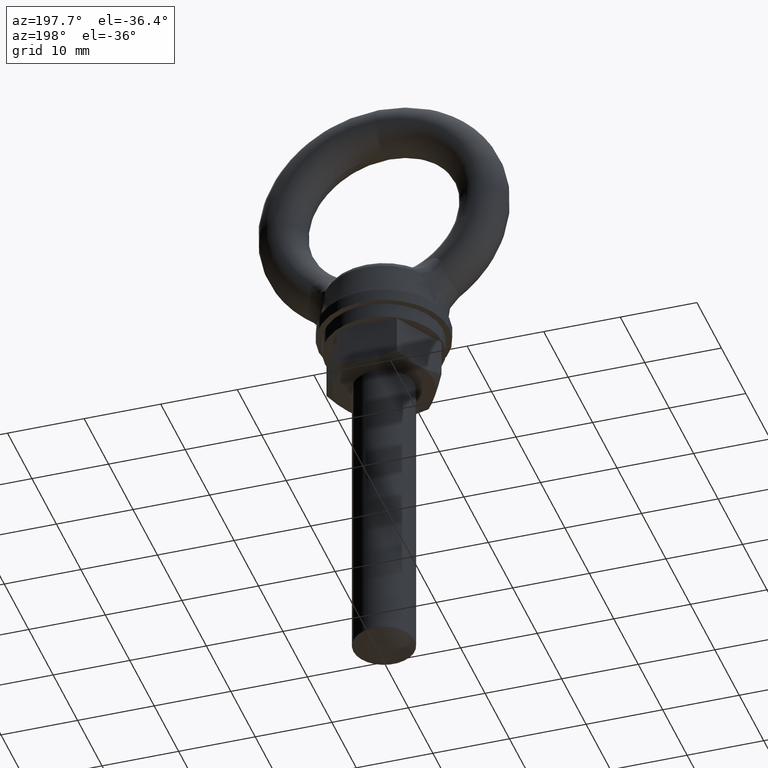
[diagram: clean part render]
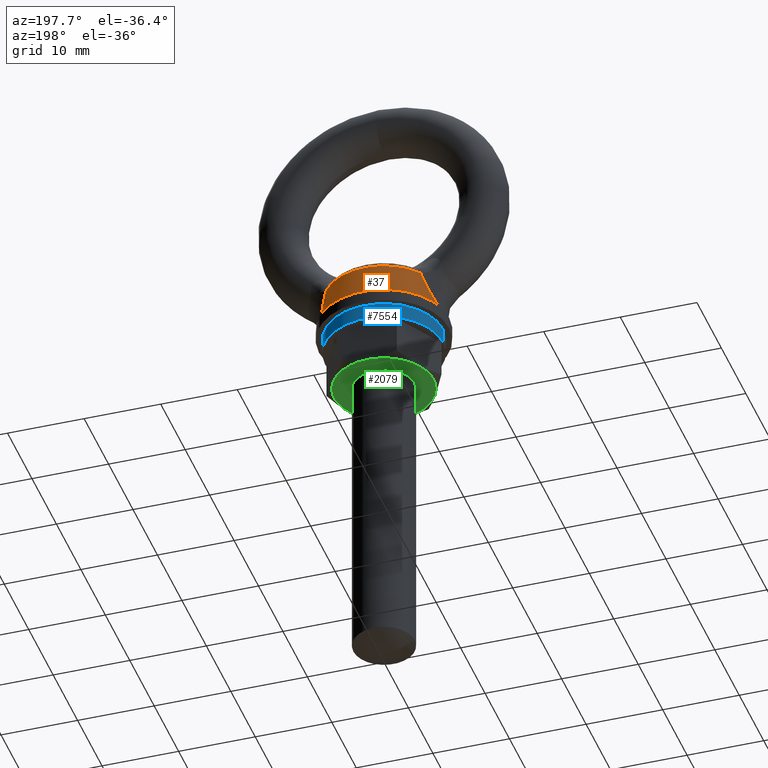
[diagram: same view with three faces highlighted in distinct colors, each labeled with its STEP entity id]
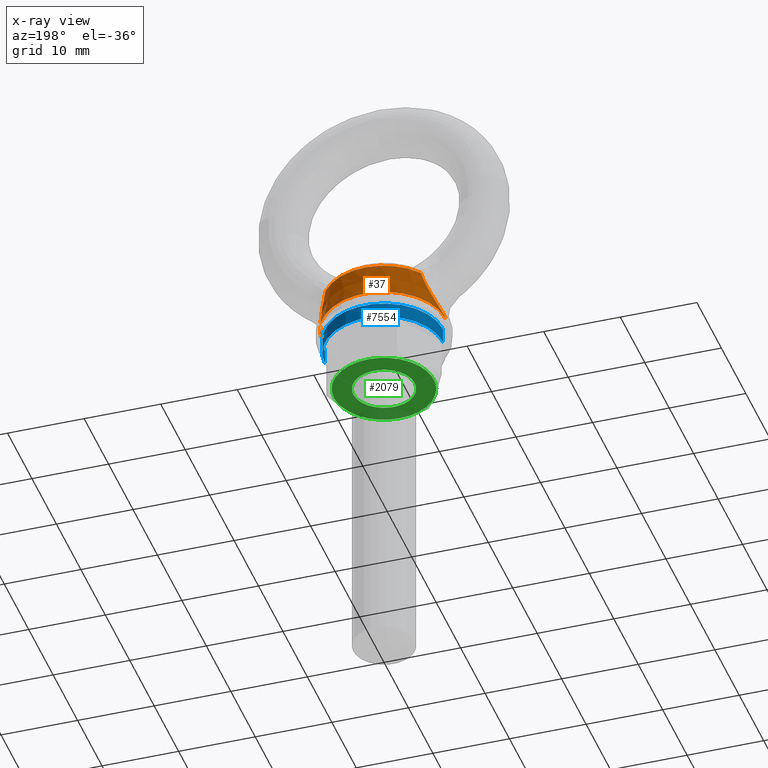
[diagram: x-ray of the same camera — body ghosted, the three highlighted faces saturated]
A machine part, auxiliary view with three faces highlighted in distinct colors.
The next image is the same camera in x-ray (body ghosted, the three faces saturated) — at least one of them is partly hidden behind the body in this view.
Their STEP definitions:

[orange] entity #37 — the highlighted conical surface has half-angle 5 deg.
#10 = ORIENTED_EDGE ( 'NONE', *, *, #11, .T. ) ;
#11 = EDGE_CURVE ( 'NONE', #108, #109, #508, .T. ) ;
#36 = EDGE_LOOP ( 'NONE', ( #10, #43, #1816, #1819, #1822, #2021 ) ) ;
#37 = ADVANCED_FACE ( 'NONE', ( #1363 ), #1356, .T. ) ;
#43 = ORIENTED_EDGE ( 'NONE', *, *, #1815, .T. ) ;
#97 = VERTEX_POINT ( 'NONE', #6023 ) ;
#108 = VERTEX_POINT ( 'NONE', #5572 ) ;
#109 = VERTEX_POINT ( 'NONE', #5528 ) ;
#413 = CARTESIAN_POINT ( 'NONE',  ( 7.978061295766676300, 2.547687685380514800E-011, -16.74923997788642900 ) ) ;
#414 = CARTESIAN_POINT ( 'NONE',  ( 7.978061295765623800, 0.2833191255498193100, -16.74923997788471700 ) ) ;
#415 = CARTESIAN_POINT ( 'NONE',  ( 7.959795342409210900, 0.5718046275041904800, -16.71977356463808600 ) ) ;
#416 = CARTESIAN_POINT ( 'NONE',  ( 7.890987243053435100, 1.122473905029033300, -16.60671778006375000 ) ) ;
#417 = CARTESIAN_POINT ( 'NONE',  ( 7.840879418701055300, 1.387375438696458100, -16.52382155039643800 ) ) ;
#418 = CARTESIAN_POINT ( 'NONE',  ( 7.713738907019216400, 1.897586032504909600, -16.30697918787685900 ) ) ;
#419 = CARTESIAN_POINT ( 'NONE',  ( 7.637741625136119000, 2.137843358775208400, -16.17464781627292000 ) ) ;
#420 = CARTESIAN_POINT ( 'NONE',  ( 7.472070239655748100, 2.580174103661142300, -15.87401695488659400 ) ) ;
#421 = CARTESIAN_POINT ( 'NONE',  ( 7.381771383096067400, 2.784521537567979700, -15.70467943273329000 ) ) ;
#422 = CARTESIAN_POINT ( 'NONE',  ( 7.191972160612237100, 3.162662739913072200, -15.32910516627604900 ) ) ;
#423 = CARTESIAN_POINT ( 'NONE',  ( 7.093108766145618900, 3.334768518180766300, -15.12382258030863200 ) ) ;
#424 = CARTESIAN_POINT ( 'NONE',  ( 6.899242522336976400, 3.639404277857393800, -14.69389256611365500 ) ) ;
#425 = CARTESIAN_POINT ( 'NONE',  ( 6.803290993242570500, 3.773784452342338300, -14.46741059988001900 ) ) ;
#426 = CARTESIAN_POINT ( 'NONE',  ( 6.617505508660245900, 4.011256946778234000, -13.99249650156617100 ) ) ;
#427 = CARTESIAN_POINT ( 'NONE',  ( 6.527258717941119700, 4.114688659261673800, -13.74266899169102300 ) ) ;
#428 = CARTESIAN_POINT ( 'NONE',  ( 6.359387483970397900, 4.290113183179031800, -13.23087931092761400 ) ) ;
#429 = CARTESIAN_POINT ( 'NONE',  ( 6.281497496774276700, 4.362544022843335000, -12.96846117206049700 ) ) ;
#507 = CARTESIAN_POINT ( 'NONE',  ( 6.210392761138069600, 4.421908272886815500, -12.69996661424272100 ) ) ;
#508 = B_SPLINE_CURVE_WITH_KNOTS ( 'NONE', 3,
 ( #507, #429, #428, #427, #426, #425, #424, #423, #422, #421, #420, #419, #418, #417, #416, #415, #414, #413 ),
 .UNSPECIFIED., .F., .F.,
 ( 4, 2, 2, 2, 2, 2, 2, 2, 4 ),
 ( 0.0000000000000000000, 0.0008491573141449699300, 0.001698314628289939900, 0.002547471942434909600, 0.003396629256579879700, 0.004245786570724849800, 0.005094943884869819100, 0.005944101199014789300, 0.006793258513159759400 ),
 .UNSPECIFIED. ) ;
#1353 = DIRECTION ( 'NONE',  ( -1.000000000000000000, 0.0000000000000000000, 0.0000000000000000000 ) ) ;
#1354 = DIRECTION ( 'NONE',  ( 0.0000000000000000000, 0.0000000000000000000, -1.000000000000000000 ) ) ;
#1355 = AXIS2_PLACEMENT_3D ( 'NONE', #1357, #1354, #1353 ) ;
#1356 = CONICAL_SURFACE ( 'NONE', #1355, 8.000000000000000000, 0.08726664082111058900 ) ;
#1357 = CARTESIAN_POINT ( 'NONE',  ( 0.0000000000000000000, 0.0000000000000000000, -17.00000000000000000 ) ) ;
#1363 = FACE_OUTER_BOUND ( 'NONE', #36, .T. ) ;
#1815 = EDGE_CURVE ( 'NONE', #109, #97, #6454, .T. ) ;
#1816 = ORIENTED_EDGE ( 'NONE', *, *, #1817, .F. ) ;
#1817 = EDGE_CURVE ( 'NONE', #1818, #97, #6444, .T. ) ;
#1818 = VERTEX_POINT ( 'NONE', #6439 ) ;
#1819 = ORIENTED_EDGE ( 'NONE', *, *, #1820, .F. ) ;
#1820 = EDGE_CURVE ( 'NONE', #1821, #1818, #6438, .T. ) ;
#1821 = VERTEX_POINT ( 'NONE', #6434 ) ;
#1822 = ORIENTED_EDGE ( 'NONE', *, *, #1823, .T. ) ;
#1823 = EDGE_CURVE ( 'NONE', #1821, #1824, #6431, .T. ) ;
#1824 = VERTEX_POINT ( 'NONE', #6430 ) ;
#2021 = ORIENTED_EDGE ( 'NONE', *, *, #2022, .T. ) ;
#2022 = EDGE_CURVE ( 'NONE', #1824, #108, #6815, .T. ) ;
#5528 = CARTESIAN_POINT ( 'NONE',  ( 7.978061295766676300, 2.547687685380514800E-011, -16.74923997788642900 ) ) ;
#5572 = CARTESIAN_POINT ( 'NONE',  ( 6.210392761138069600, 4.421908272886815500, -12.69996661424272100 ) ) ;
#6023 = CARTESIAN_POINT ( 'NONE',  ( 8.000000000000000000, 9.796850830579018100E-016, -17.00000000000000000 ) ) ;
#6430 = CARTESIAN_POINT ( 'NONE',  ( -6.210392761138069600, 4.421908272886815500, -12.69996661424272100 ) ) ;
#6431 = B_SPLINE_CURVE_WITH_KNOTS ( 'NONE', 3,
 ( #6527, #6526, #6525, #6524, #6523, #6522, #6521, #6520, #6519, #6518, #6517, #6516, #6515, #6514, #6513, #6512 ),
 .UNSPECIFIED., .F., .F.,
 ( 4, 2, 2, 2, 2, 2, 2, 4 ),
 ( 0.006793258513159757700, 0.007643701321121398700, 0.008494144129083039700, 0.009344586937044681600, 0.01019502974500632200, 0.01104547255296797100, 0.01189591536092961900, 0.01359680097685292100 ),
 .UNSPECIFIED. ) ;
#6434 = CARTESIAN_POINT ( 'NONE',  ( -7.978061295766676300, -2.547674772147074800E-011, -16.74923997788642900 ) ) ;
#6435 = DIRECTION ( 'NONE',  ( -0.08715592029086469100, 0.0000000000000000000, -0.9961946825587118000 ) ) ;
#6436 = VECTOR ( 'NONE', #6435, 1000.000000000000000 ) ;
#6437 = CARTESIAN_POINT ( 'NONE',  ( -8.000000000000000000, 0.0000000000000000000, -17.00000000000000000 ) ) ;
#6438 = LINE ( 'NONE', #6437, #6436 ) ;
#6439 = CARTESIAN_POINT ( 'NONE',  ( -8.000000000000000000, 0.0000000000000000000, -17.00000000000000000 ) ) ;
#6440 = DIRECTION ( 'NONE',  ( -1.000000000000000000, 0.0000000000000000000, 0.0000000000000000000 ) ) ;
#6441 = DIRECTION ( 'NONE',  ( 0.0000000000000000000, 0.0000000000000000000, -1.000000000000000000 ) ) ;
#6442 = CARTESIAN_POINT ( 'NONE',  ( 0.0000000000000000000, 0.0000000000000000000, -17.00000000000000000 ) ) ;
#6443 = AXIS2_PLACEMENT_3D ( 'NONE', #6442, #6441, #6440 ) ;
#6444 = CIRCLE ( 'NONE', #6443, 8.000000000000000000 ) ;
#6445 = DIRECTION ( 'NONE',  ( 0.08715592029086469100, 1.067316937614295400E-017, -0.9961946825587118000 ) ) ;
#6446 = VECTOR ( 'NONE', #6445, 1000.000000000000000 ) ;
#6447 = CARTESIAN_POINT ( 'NONE',  ( 8.000000000000000000, 9.796850830579018100E-016, -17.00000000000000000 ) ) ;
#6454 = LINE ( 'NONE', #6447, #6446 ) ;
#6512 = CARTESIAN_POINT ( 'NONE',  ( -6.210392761138069600, 4.421908272886815500, -12.69996661424272100 ) ) ;
#6513 = CARTESIAN_POINT ( 'NONE',  ( -6.352774983116775700, 4.303035545892445400, -13.23760804401850400 ) ) ;
#6514 = CARTESIAN_POINT ( 'NONE',  ( -6.521835315794030300, 4.133273454851131000, -13.74751196352283200 ) ) ;
#6515 = CARTESIAN_POINT ( 'NONE',  ( -6.802326438138770500, 3.775150612293932000, -14.46515609343280900 ) ) ;
#6516 = CARTESIAN_POINT ( 'NONE',  ( -6.900199435006725500, 3.638051344731991300, -14.69613900649317600 ) ) ;
#6517 = CARTESIAN_POINT ( 'NONE',  ( -7.094806094114287200, 3.331948585593758900, -15.12746064357346900 ) ) ;
#6518 = CARTESIAN_POINT ( 'NONE',  ( -7.192233262825610900, 3.162189189056240100, -15.32963966651833900 ) ) ;
#6519 = CARTESIAN_POINT ( 'NONE',  ( -7.382050305574232100, 2.783919052358374600, -15.70521348130626100 ) ) ;
#6520 = CARTESIAN_POINT ( 'NONE',  ( -7.474527990394008700, 2.574390398047316600, -15.87859289991847300 ) ) ;
#6521 = CARTESIAN_POINT ( 'NONE',  ( -7.640562853530667600, 2.129507459972071400, -16.17964746929633400 ) ) ;
#6522 = CARTESIAN_POINT ( 'NONE',  ( -7.715214405743791900, 1.892333759044079400, -16.30952380188658400 ) ) ;
#6523 = CARTESIAN_POINT ( 'NONE',  ( -7.841414596894223300, 1.384548204637223300, -16.52470576121613300 ) ) ;
#6524 = CARTESIAN_POINT ( 'NONE',  ( -7.892762876651932700, 1.111512915870895200, -16.60965174227722900 ) ) ;
#6525 = CARTESIAN_POINT ( 'NONE',  ( -7.960509930743505400, 0.5627155035198906400, -16.72093056700588300 ) ) ;
#6526 = CARTESIAN_POINT ( 'NONE',  ( -7.978061295767735000, 0.2837480271616547600, -16.74923997788814500 ) ) ;
#6527 = CARTESIAN_POINT ( 'NONE',  ( -7.978061295766676300, -2.547674772147074800E-011, -16.74923997788642900 ) ) ;
#6812 = DIRECTION ( 'NONE',  ( 1.000000000000000000, 0.0000000000000000000, 0.0000000000000000000 ) ) ;
#6813 = DIRECTION ( 'NONE',  ( 0.0000000000000000000, 0.0000000000000000000, -1.000000000000000000 ) ) ;
#6814 = AXIS2_PLACEMENT_3D ( 'NONE', #6820, #6813, #6812 ) ;
#6815 = CIRCLE ( 'NONE', #6814, 7.623795053739380400 ) ;
#6820 = CARTESIAN_POINT ( 'NONE',  ( 0.0000000000000000000, 0.0000000000000000000, -12.69996661424272100 ) ) ;

[blue] entity #7554 — the highlighted cylindrical surface (partial cylindrical patch) has radius 7.7 mm, axis along (0, 0, -1).
#7065 = DIRECTION ( 'NONE',  ( 0.0000000000000000000, 0.0000000000000000000, -1.000000000000000000 ) ) ;
#7066 = VECTOR ( 'NONE', #7065, 1000.000000000000000 ) ;
#7067 = CARTESIAN_POINT ( 'NONE',  ( 7.700000000000000200, 9.429468924432306500E-016, 979.4000009999999700 ) ) ;
#7068 = LINE ( 'NONE', #7067, #7066 ) ;
#7069 = CARTESIAN_POINT ( 'NONE',  ( 7.700000000000000200, 9.429468924432306500E-016, -18.59999900000000000 ) ) ;
#7070 = CARTESIAN_POINT ( 'NONE',  ( -7.700000000000000200, 0.0000000000000000000, -18.59999900000000000 ) ) ;
#7071 = DIRECTION ( 'NONE',  ( 1.000000000000000000, 0.0000000000000000000, 0.0000000000000000000 ) ) ;
#7072 = DIRECTION ( 'NONE',  ( 0.0000000000000000000, 0.0000000000000000000, -1.000000000000000000 ) ) ;
#7073 = AXIS2_PLACEMENT_3D ( 'NONE', #7079, #7072, #7071 ) ;
#7074 = CIRCLE ( 'NONE', #7073, 7.700000000000000200 ) ;
#7075 = DIRECTION ( 'NONE',  ( -1.000000000000000000, 0.0000000000000000000, 0.0000000000000000000 ) ) ;
#7076 = DIRECTION ( 'NONE',  ( 0.0000000000000000000, 0.0000000000000000000, -1.000000000000000000 ) ) ;
#7077 = CARTESIAN_POINT ( 'NONE',  ( 0.0000000000000000000, 0.0000000000000000000, 979.4000009999999700 ) ) ;
#7078 = AXIS2_PLACEMENT_3D ( 'NONE', #7077, #7076, #7075 ) ;
#7079 = CARTESIAN_POINT ( 'NONE',  ( 0.0000000000000000000, 0.0000000000000000000, -18.59999900000000000 ) ) ;
#7080 = CYLINDRICAL_SURFACE ( 'NONE', #7078, 7.700000000000000200 ) ;
#7081 = FACE_OUTER_BOUND ( 'NONE', #7555, .T. ) ;
#7094 = DIRECTION ( 'NONE',  ( 0.0000000000000000000, 0.0000000000000000000, -1.000000000000000000 ) ) ;
#7095 = VECTOR ( 'NONE', #7094, 1000.000000000000000 ) ;
#7096 = CARTESIAN_POINT ( 'NONE',  ( -7.700000000000000200, 0.0000000000000000000, 979.4000009999999700 ) ) ;
#7097 = LINE ( 'NONE', #7096, #7095 ) ;
#7098 = CARTESIAN_POINT ( 'NONE',  ( -7.700000000000000200, 0.0000000000000000000, -20.59999900000000000 ) ) ;
#7278 = DIRECTION ( 'NONE',  ( 1.000000000000000000, 0.0000000000000000000, 0.0000000000000000000 ) ) ;
#7279 = DIRECTION ( 'NONE',  ( 0.0000000000000000000, 0.0000000000000000000, -1.000000000000000000 ) ) ;
#7280 = CARTESIAN_POINT ( 'NONE',  ( 0.0000000000000000000, 0.0000000000000000000, -20.59999900000000000 ) ) ;
#7281 = AXIS2_PLACEMENT_3D ( 'NONE', #7280, #7279, #7278 ) ;
#7282 = CIRCLE ( 'NONE', #7281, 7.700000000000000200 ) ;
#7283 = CARTESIAN_POINT ( 'NONE',  ( 7.700000000000000200, 9.429468924432306500E-016, -20.59999900000000000 ) ) ;
#7485 = VERTEX_POINT ( 'NONE', #7283 ) ;
#7486 = ORIENTED_EDGE ( 'NONE', *, *, #7487, .F. ) ;
#7487 = EDGE_CURVE ( 'NONE', #7546, #7485, #7282, .T. ) ;
#7546 = VERTEX_POINT ( 'NONE', #7098 ) ;
#7547 = ORIENTED_EDGE ( 'NONE', *, *, #7548, .F. ) ;
#7548 = EDGE_CURVE ( 'NONE', #7558, #7546, #7097, .T. ) ;
#7554 = ADVANCED_FACE ( 'NONE', ( #7081 ), #7080, .T. ) ;
#7555 = EDGE_LOOP ( 'NONE', ( #7556, #7560, #7486, #7547 ) ) ;
#7556 = ORIENTED_EDGE ( 'NONE', *, *, #7557, .T. ) ;
#7557 = EDGE_CURVE ( 'NONE', #7558, #7559, #7074, .T. ) ;
#7558 = VERTEX_POINT ( 'NONE', #7070 ) ;
#7559 = VERTEX_POINT ( 'NONE', #7069 ) ;
#7560 = ORIENTED_EDGE ( 'NONE', *, *, #7561, .T. ) ;
#7561 = EDGE_CURVE ( 'NONE', #7559, #7485, #7068, .T. ) ;

[green] entity #2079 — the highlighted planar face has unit normal (0, 0, 1).
#1773 = VERTEX_POINT ( 'NONE', #5338 ) ;
#1797 = VERTEX_POINT ( 'NONE', #6479 ) ;
#1925 = VERTEX_POINT ( 'NONE', #6677 ) ;
#1930 = EDGE_LOOP ( 'NONE', ( #2080, #2082 ) ) ;
#1981 = VERTEX_POINT ( 'NONE', #6617 ) ;
#1990 = ORIENTED_EDGE ( 'NONE', *, *, #1991, .F. ) ;
#1991 = EDGE_CURVE ( 'NONE', #7461, #1773, #5343, .T. ) ;
#1992 = ORIENTED_EDGE ( 'NONE', *, *, #7465, .F. ) ;
#1993 = ORIENTED_EDGE ( 'NONE', *, *, #1994, .F. ) ;
#1994 = EDGE_CURVE ( 'NONE', #7528, #7463, #6882, .T. ) ;
#1995 = ORIENTED_EDGE ( 'NONE', *, *, #1996, .F. ) ;
#1996 = EDGE_CURVE ( 'NONE', #1925, #7528, #7021, .T. ) ;
#1997 = ORIENTED_EDGE ( 'NONE', *, *, #2065, .F. ) ;
#2065 = EDGE_CURVE ( 'NONE', #1981, #1925, #6898, .T. ) ;
#2066 = ORIENTED_EDGE ( 'NONE', *, *, #2067, .T. ) ;
#2067 = EDGE_CURVE ( 'NONE', #1981, #1797, #6893, .T. ) ;
#2079 = ADVANCED_FACE ( 'NONE', ( #6853, #6852 ), #6865, .F. ) ;
#2080 = ORIENTED_EDGE ( 'NONE', *, *, #2081, .F. ) ;
#2081 = EDGE_CURVE ( 'NONE', #7449, #7543, #6847, .T. ) ;
#2082 = ORIENTED_EDGE ( 'NONE', *, *, #7446, .F. ) ;
#2083 = EDGE_LOOP ( 'NONE', ( #2084, #1990, #1992, #1993, #1995, #1997, #2066 ) ) ;
#2084 = ORIENTED_EDGE ( 'NONE', *, *, #2085, .F. ) ;
#2085 = EDGE_CURVE ( 'NONE', #1773, #1797, #6842, .T. ) ;
#5338 = CARTESIAN_POINT ( 'NONE',  ( 5.629165405748550700, 3.249999513034385100, -26.09999900000000000 ) ) ;
#5342 = AXIS2_PLACEMENT_3D ( 'NONE', #6291, #6656, #6657 ) ;
#5343 = CIRCLE ( 'NONE', #5342, 6.500000000000000000 ) ;
#6291 = CARTESIAN_POINT ( 'NONE',  ( 0.0000000000000000000, 0.0000000000000000000, -26.09999900000000000 ) ) ;
#6479 = CARTESIAN_POINT ( 'NONE',  ( 0.0000000000000000000, 6.500000000000000000, -26.09999900000000000 ) ) ;
#6617 = CARTESIAN_POINT ( 'NONE',  ( -5.629165405748550700, 3.249999513034385100, -26.09999900000000000 ) ) ;
#6656 = DIRECTION ( 'NONE',  ( 0.0000000000000000000, 0.0000000000000000000, 1.000000000000000000 ) ) ;
#6657 = DIRECTION ( 'NONE',  ( 1.000000000000000000, 0.0000000000000000000, 0.0000000000000000000 ) ) ;
#6677 = CARTESIAN_POINT ( 'NONE',  ( -5.629165312299389400, -3.249999459081494900, -26.09999900000000000 ) ) ;
#6828 = DIRECTION ( 'NONE',  ( 1.000000000000000000, 0.0000000000000000000, 0.0000000000000000000 ) ) ;
#6829 = DIRECTION ( 'NONE',  ( 0.0000000000000000000, 0.0000000000000000000, -1.000000000000000000 ) ) ;
#6830 = CARTESIAN_POINT ( 'NONE',  ( 0.0000000000000000000, 0.0000000000000000000, -26.09999900000004700 ) ) ;
#6831 = AXIS2_PLACEMENT_3D ( 'NONE', #6830, #6829, #6828 ) ;
#6832 = CIRCLE ( 'NONE', #6831, 4.000000000000000000 ) ;
#6838 = DIRECTION ( 'NONE',  ( 1.000000000000000000, 0.0000000000000000000, 0.0000000000000000000 ) ) ;
#6839 = DIRECTION ( 'NONE',  ( 0.0000000000000000000, 0.0000000000000000000, 1.000000000000000000 ) ) ;
#6840 = CARTESIAN_POINT ( 'NONE',  ( 0.0000000000000000000, 0.0000000000000000000, -26.09999900000000000 ) ) ;
#6841 = AXIS2_PLACEMENT_3D ( 'NONE', #6840, #6839, #6838 ) ;
#6842 = CIRCLE ( 'NONE', #6841, 6.500000000000000000 ) ;
#6843 = DIRECTION ( 'NONE',  ( 1.000000000000000000, 0.0000000000000000000, 0.0000000000000000000 ) ) ;
#6844 = DIRECTION ( 'NONE',  ( 0.0000000000000000000, 0.0000000000000000000, -1.000000000000000000 ) ) ;
#6845 = CARTESIAN_POINT ( 'NONE',  ( 0.0000000000000000000, 0.0000000000000000000, -26.09999900000004700 ) ) ;
#6846 = AXIS2_PLACEMENT_3D ( 'NONE', #6845, #6844, #6843 ) ;
#6847 = CIRCLE ( 'NONE', #6846, 4.000000000000000000 ) ;
#6848 = DIRECTION ( 'NONE',  ( 1.000000000000000000, 0.0000000000000000000, 0.0000000000000000000 ) ) ;
#6849 = DIRECTION ( 'NONE',  ( 0.0000000000000000000, 0.0000000000000000000, 1.000000000000000000 ) ) ;
#6850 = CARTESIAN_POINT ( 'NONE',  ( 0.0000000000000000000, 0.0000000000000000000, -26.09999900000000000 ) ) ;
#6851 = AXIS2_PLACEMENT_3D ( 'NONE', #6850, #6849, #6848 ) ;
#6852 = FACE_OUTER_BOUND ( 'NONE', #2083, .T. ) ;
#6853 = FACE_BOUND ( 'NONE', #1930, .T. ) ;
#6865 = PLANE ( 'NONE',  #6851 ) ;
#6882 = CIRCLE ( 'NONE', #6886, 6.500000000000000000 ) ;
#6883 = DIRECTION ( 'NONE',  ( 1.000000000000000000, 0.0000000000000000000, 0.0000000000000000000 ) ) ;
#6884 = DIRECTION ( 'NONE',  ( 0.0000000000000000000, 0.0000000000000000000, 1.000000000000000000 ) ) ;
#6885 = CARTESIAN_POINT ( 'NONE',  ( 0.0000000000000000000, 0.0000000000000000000, -26.09999900000000000 ) ) ;
#6886 = AXIS2_PLACEMENT_3D ( 'NONE', #6885, #6884, #6883 ) ;
#6889 = DIRECTION ( 'NONE',  ( -1.000000000000000000, 0.0000000000000000000, 0.0000000000000000000 ) ) ;
#6890 = DIRECTION ( 'NONE',  ( 0.0000000000000000000, 0.0000000000000000000, -1.000000000000000000 ) ) ;
#6891 = CARTESIAN_POINT ( 'NONE',  ( 0.0000000000000000000, 0.0000000000000000000, -26.09999900000000000 ) ) ;
#6892 = AXIS2_PLACEMENT_3D ( 'NONE', #6891, #6890, #6889 ) ;
#6893 = CIRCLE ( 'NONE', #6892, 6.500000000000000000 ) ;
#6894 = DIRECTION ( 'NONE',  ( 1.000000000000000000, 0.0000000000000000000, 0.0000000000000000000 ) ) ;
#6895 = DIRECTION ( 'NONE',  ( 0.0000000000000000000, 0.0000000000000000000, 1.000000000000000000 ) ) ;
#6896 = CARTESIAN_POINT ( 'NONE',  ( 0.0000000000000000000, 0.0000000000000000000, -26.09999900000000000 ) ) ;
#6897 = AXIS2_PLACEMENT_3D ( 'NONE', #6896, #6895, #6894 ) ;
#6898 = CIRCLE ( 'NONE', #6897, 6.500000000000000000 ) ;
#7017 = DIRECTION ( 'NONE',  ( 1.000000000000000000, 0.0000000000000000000, 0.0000000000000000000 ) ) ;
#7018 = DIRECTION ( 'NONE',  ( 0.0000000000000000000, 0.0000000000000000000, 1.000000000000000000 ) ) ;
#7019 = CARTESIAN_POINT ( 'NONE',  ( 0.0000000000000000000, 0.0000000000000000000, -26.09999900000000000 ) ) ;
#7020 = AXIS2_PLACEMENT_3D ( 'NONE', #7019, #7018, #7017 ) ;
#7021 = CIRCLE ( 'NONE', #7020, 6.500000000000000000 ) ;
#7114 = CARTESIAN_POINT ( 'NONE',  ( 4.000000000000000000, 4.898425415289509000E-016, -26.09999900000004700 ) ) ;
#7142 = CARTESIAN_POINT ( 'NONE',  ( 0.0000000000000000000, -6.500000000000000000, -26.09999900000000000 ) ) ;
#7172 = DIRECTION ( 'NONE',  ( 1.000000000000000000, 0.0000000000000000000, 0.0000000000000000000 ) ) ;
#7173 = DIRECTION ( 'NONE',  ( 0.0000000000000000000, 0.0000000000000000000, 1.000000000000000000 ) ) ;
#7174 = CARTESIAN_POINT ( 'NONE',  ( 0.0000000000000000000, 0.0000000000000000000, -26.09999900000000000 ) ) ;
#7175 = AXIS2_PLACEMENT_3D ( 'NONE', #7174, #7173, #7172 ) ;
#7176 = CIRCLE ( 'NONE', #7175, 6.500000000000000000 ) ;
#7178 = CARTESIAN_POINT ( 'NONE',  ( 5.629165405748550700, -3.249999513034385100, -26.09999900000000000 ) ) ;
#7179 = CARTESIAN_POINT ( 'NONE',  ( 6.500000000000000900, 0.0000000000000000000, -26.09999900000000000 ) ) ;
#7271 = CARTESIAN_POINT ( 'NONE',  ( -4.000000000000000000, 0.0000000000000000000, -26.09999900000004700 ) ) ;
#7446 = EDGE_CURVE ( 'NONE', #7543, #7449, #6832, .T. ) ;
#7449 = VERTEX_POINT ( 'NONE', #7271 ) ;
#7461 = VERTEX_POINT ( 'NONE', #7179 ) ;
#7463 = VERTEX_POINT ( 'NONE', #7178 ) ;
#7465 = EDGE_CURVE ( 'NONE', #7463, #7461, #7176, .T. ) ;
#7528 = VERTEX_POINT ( 'NONE', #7142 ) ;
#7543 = VERTEX_POINT ( 'NONE', #7114 ) ;